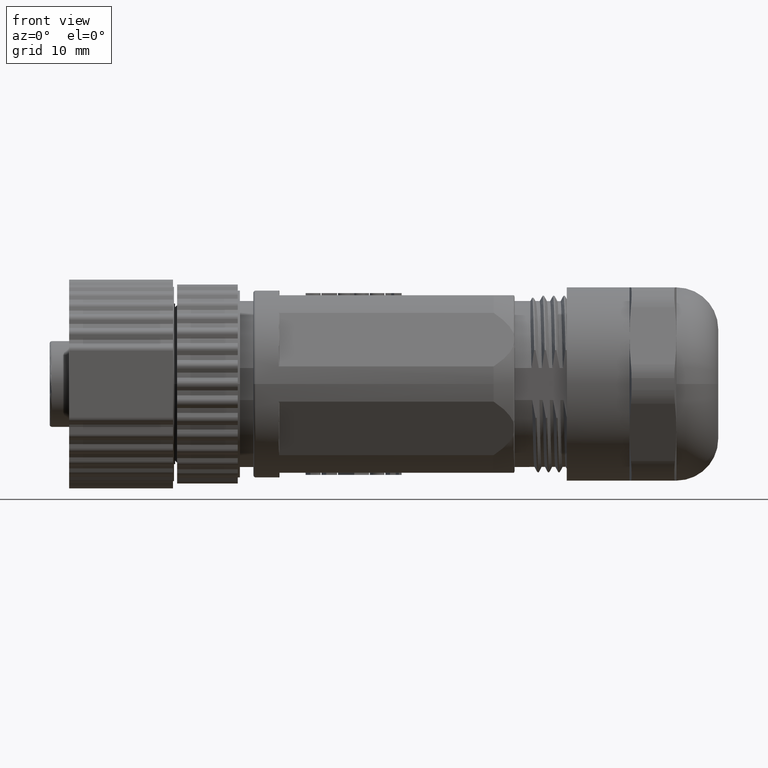
[diagram: clean part render]
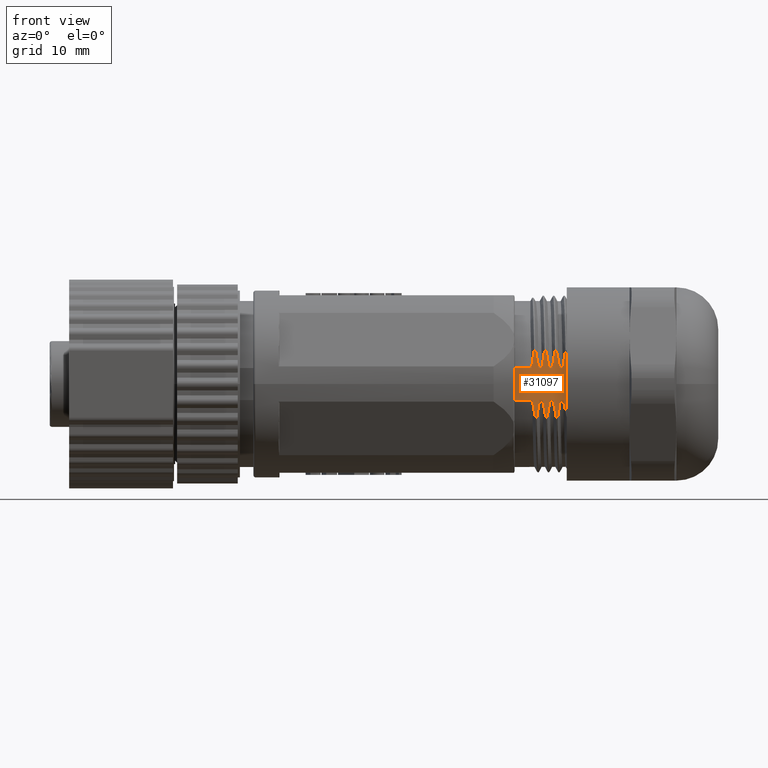
[diagram: same view with one face highlighted and labeled with its STEP entity id]
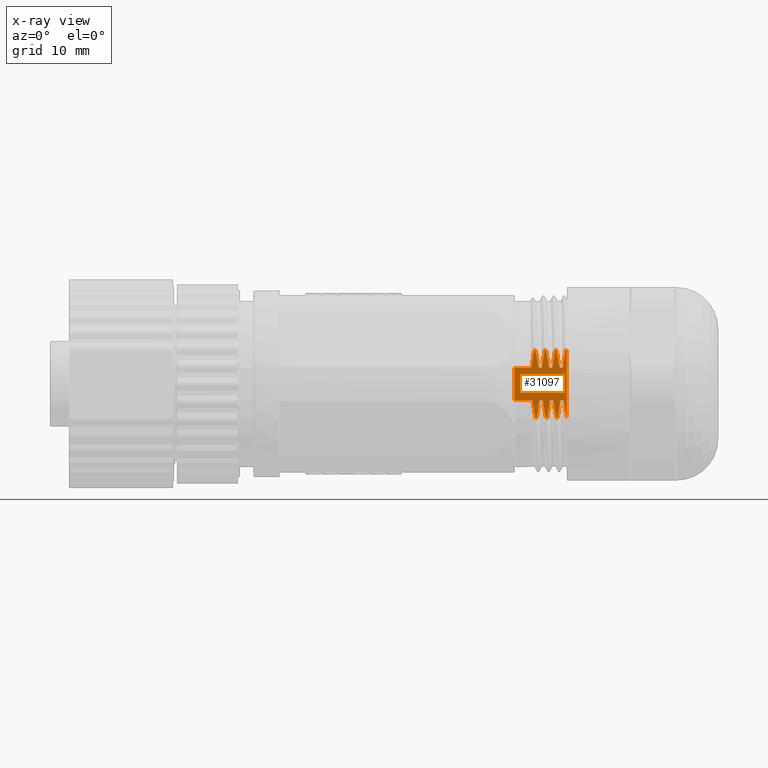
[diagram: x-ray of the same camera — body ghosted, the highlighted face saturated]
A machine part, front view. The second image highlights one B-rep face of the part: STEP entity #31097.
The next image is the same camera in x-ray: the body ghosted, the highlighted face saturated — about 0% of this face is hidden behind the body in this view.
In plain terms, the highlighted planar face has unit normal (0, 1, 0).
Its self-contained STEP definition (entity closure, byte-faithful):
#8309=DIRECTION('',(0.E0,0.E0,1.E0));
#8310=VECTOR('',#8309,3.074085229788E0);
#8311=CARTESIAN_POINT('',(3.82E1,-7.8E0,-1.537042614894E0));
#8312=LINE('',#8311,#8310);
#8322=DIRECTION('',(1.E0,0.E0,0.E0));
#8323=VECTOR('',#8322,1.620241579782E0);
#8324=CARTESIAN_POINT('',(3.82E1,-7.8E0,1.537042614894E0));
#8325=LINE('',#8324,#8323);
#8370=DIRECTION('',(1.E0,0.E0,0.E0));
#8371=VECTOR('',#8370,3.024147763332E-1);
#8372=CARTESIAN_POINT('',(4.051782680345E1,-7.8E0,1.537042614894E0));
#8373=LINE('',#8372,#8371);
#8436=DIRECTION('',(-6.296052860604E-6,-8.798093295683E-5,9.999999961099E-1));
#8437=VECTOR('',#8436,6.476355503111E0);
#8438=CARTESIAN_POINT('',(4.32E1,-7.8E0,-3.238643957013E0));
#8439=LINE('',#8438,#8437);
#9227=CARTESIAN_POINT('',(4.319995922452E1,-7.800569795799E0,3.237711520904E0));
#9271=DIRECTION('',(9.999134640712E-1,-4.554136942613E-3,-1.234196928500E-2));
#9272=VECTOR('',#9271,1.251160881867E-1);
#9273=CARTESIAN_POINT('',(4.307485396337E1,-7.8E0,3.239255699822E0));
#9274=LINE('',#9273,#9272);
#9314=CARTESIAN_POINT('',(4.282024157978E1,-7.8E0,1.537042614894E0));
#9315=CARTESIAN_POINT('',(4.283754805226E1,-7.8E0,1.725192474037E0));
#9316=CARTESIAN_POINT('',(4.287976619046E1,-7.8E0,2.102101291705E0));
#9317=CARTESIAN_POINT('',(4.296482364788E1,-7.8E0,2.667783181130E0));
#9318=CARTESIAN_POINT('',(4.303590264312E1,-7.8E0,3.048344774332E0));
#9319=CARTESIAN_POINT('',(4.307485396337E1,-7.8E0,3.239255699822E0));
#9329=DIRECTION('',(1.E0,0.E0,-2.276139690044E-14));
#9330=VECTOR('',#9329,3.024147763332E-1);
#9331=CARTESIAN_POINT('',(4.251782680345E1,-7.8E0,1.537042614894E0));
#9332=LINE('',#9331,#9330);
#9417=CARTESIAN_POINT('',(4.219985390509E1,-7.8E0,3.239255699822E0));
#9418=CARTESIAN_POINT('',(4.223414459759E1,-7.8E0,3.095680808021E0));
#9419=CARTESIAN_POINT('',(4.229896671291E1,-7.8E0,2.809567608672E0));
#9420=CARTESIAN_POINT('',(4.238445750902E1,-7.8E0,2.383919060364E0));
#9421=CARTESIAN_POINT('',(4.245816315035E1,-7.8E0,1.960213975953E0));
#9422=CARTESIAN_POINT('',(4.249932303508E1,-7.8E0,1.678006619357E0));
#9423=CARTESIAN_POINT('',(4.251782680345E1,-7.8E0,1.537042614894E0));
#9468=DIRECTION('',(1.E0,-2.842172268203E-14,-3.907986868780E-14));
#9469=VECTOR('',#9468,1.249999417187E-1);
#9470=CARTESIAN_POINT('',(4.207485396337E1,-7.8E0,3.239255699822E0));
#9471=LINE('',#9470,#9469);
#9511=CARTESIAN_POINT('',(4.182024157978E1,-7.8E0,1.537042614894E0));
#9512=CARTESIAN_POINT('',(4.183754811108E1,-7.8E0,1.725193113542E0));
#9513=CARTESIAN_POINT('',(4.187976637894E1,-7.8E0,2.102102777763E0));
#9514=CARTESIAN_POINT('',(4.196482388939E1,-7.8E0,2.667784560969E0));
#9515=CARTESIAN_POINT('',(4.203590276302E1,-7.8E0,3.048345361979E0));
#9516=CARTESIAN_POINT('',(4.207485396337E1,-7.8E0,3.239255699822E0));
#9526=DIRECTION('',(1.E0,0.E0,-3.597769187479E-14));
#9527=VECTOR('',#9526,3.024147763340E-1);
#9528=CARTESIAN_POINT('',(4.151782680345E1,-7.8E0,1.537042614894E0));
#9529=LINE('',#9528,#9527);
#9614=CARTESIAN_POINT('',(4.119985390509E1,-7.8E0,3.239255699822E0));
#9615=CARTESIAN_POINT('',(4.123414459759E1,-7.8E0,3.095680808011E0));
#9616=CARTESIAN_POINT('',(4.129896671292E1,-7.8E0,2.809567608647E0));
#9617=CARTESIAN_POINT('',(4.138445750902E1,-7.8E0,2.383919060342E0));
#9618=CARTESIAN_POINT('',(4.145816315035E1,-7.8E0,1.960213975945E0));
#9619=CARTESIAN_POINT('',(4.149932303508E1,-7.8E0,1.678006619354E0));
#9620=CARTESIAN_POINT('',(4.151782680345E1,-7.8E0,1.537042614894E0));
#9664=DIRECTION('',(1.E0,1.421086134102E-14,7.105430670509E-14));
#9665=VECTOR('',#9664,1.249999417187E-1);
#9666=CARTESIAN_POINT('',(4.107485396337E1,-7.8E0,3.239255699822E0));
#9667=LINE('',#9666,#9665);
#9707=CARTESIAN_POINT('',(4.082024157978E1,-7.8E0,1.537042614894E0));
#9708=CARTESIAN_POINT('',(4.083754811108E1,-7.8E0,1.725193113537E0));
#9709=CARTESIAN_POINT('',(4.087976637893E1,-7.8E0,2.102102777751E0));
#9710=CARTESIAN_POINT('',(4.096482388938E1,-7.8E0,2.667784560939E0));
#9711=CARTESIAN_POINT('',(4.103590276301E1,-7.8E0,3.048345361966E0));
#9712=CARTESIAN_POINT('',(4.107485396337E1,-7.8E0,3.239255699822E0));
#9726=DIRECTION('',(1.E0,0.E0,0.E0));
#9727=VECTOR('',#9726,1.682173196551E0);
#9728=CARTESIAN_POINT('',(3.82E1,-7.8E0,-1.537042614894E0));
#9729=LINE('',#9728,#9727);
#9774=CARTESIAN_POINT('',(4.020014609491E1,-7.8E0,-3.239255699822E0));
#9775=CARTESIAN_POINT('',(4.016585541675E1,-7.8E0,-3.095680868034E0));
#9776=CARTESIAN_POINT('',(4.010103332037E1,-7.8E0,-2.809567760520E0));
#9777=CARTESIAN_POINT('',(4.001554252890E1,-7.8E0,-2.383919261880E0));
#9778=CARTESIAN_POINT('',(3.994183687573E1,-7.8E0,-1.960214144009E0));
#9779=CARTESIAN_POINT('',(3.990067697384E1,-7.8E0,-1.678006687287E0));
#9780=CARTESIAN_POINT('',(3.988217319655E1,-7.8E0,-1.537042614894E0));
#9789=DIRECTION('',(-1.E0,-3.552715335254E-14,7.105430670509E-14));
#9790=VECTOR('',#9789,1.249999417187E-1);
#9791=CARTESIAN_POINT('',(4.032514603663E1,-7.8E0,-3.239255699822E0));
#9792=LINE('',#9791,#9790);
#9832=CARTESIAN_POINT('',(4.057975842022E1,-7.8E0,-1.537042614894E0));
#9833=CARTESIAN_POINT('',(4.056245189834E1,-7.8E0,-1.725193011092E0));
#9834=CARTESIAN_POINT('',(4.052023365130E1,-7.8E0,-2.102102539755E0));
#9835=CARTESIAN_POINT('',(4.043517614846E1,-7.8E0,-2.667784344982E0));
#9836=CARTESIAN_POINT('',(4.036409725574E1,-7.8E0,-3.048345270016E0));
#9837=CARTESIAN_POINT('',(4.032514603663E1,-7.8E0,-3.239255699822E0));
#9882=DIRECTION('',(1.E0,0.E0,1.762172663259E-14));
#9883=VECTOR('',#9882,3.024147763333E-1);
#9884=CARTESIAN_POINT('',(4.057975842022E1,-7.8E0,-1.537042614894E0));
#9885=LINE('',#9884,#9883);
#9970=CARTESIAN_POINT('',(4.120014609491E1,-7.8E0,-3.239255699822E0));
#9971=CARTESIAN_POINT('',(4.116585553454E1,-7.8E0,-3.095681361233E0));
#9972=CARTESIAN_POINT('',(4.110103358719E1,-7.8E0,-2.809568982787E0));
#9973=CARTESIAN_POINT('',(4.101554279271E1,-7.8E0,-2.383920673757E0));
#9974=CARTESIAN_POINT('',(4.094183703615E1,-7.8E0,-1.960215183572E0));
#9975=CARTESIAN_POINT('',(4.090067702774E1,-7.8E0,-1.678007097907E0));
#9976=CARTESIAN_POINT('',(4.088217319655E1,-7.8E0,-1.537042614894E0));
#9985=DIRECTION('',(-1.E0,0.E0,0.E0));
#9986=VECTOR('',#9985,1.249999417187E-1);
#9987=CARTESIAN_POINT('',(4.132514603663E1,-7.8E0,-3.239255699822E0));
#9988=LINE('',#9987,#9986);
#10028=CARTESIAN_POINT('',(4.157975842022E1,-7.8E0,-1.537042614894E0));
#10029=CARTESIAN_POINT('',(4.156245183318E1,-7.8E0,-1.725193719517E0));
#10030=CARTESIAN_POINT('',(4.152023344549E1,-7.8E0,-2.102104190520E0));
#10031=CARTESIAN_POINT('',(4.143517581972E1,-7.8E0,-2.667786244488E0));
#10032=CARTESIAN_POINT('',(4.136409709037E1,-7.8E0,-3.048346080573E0));
#10033=CARTESIAN_POINT('',(4.132514603663E1,-7.8E0,-3.239255699822E0));
#10078=DIRECTION('',(1.E0,0.E0,-3.744616909417E-14));
#10079=VECTOR('',#10078,3.024147763340E-1);
#10080=CARTESIAN_POINT('',(4.157975842022E1,-7.8E0,-1.537042614894E0));
#10081=LINE('',#10080,#10079);
#10166=CARTESIAN_POINT('',(4.220014609491E1,-7.8E0,-3.239255699822E0));
#10167=CARTESIAN_POINT('',(4.216585541675E1,-7.8E0,-3.095680868038E0));
#10168=CARTESIAN_POINT('',(4.210103332037E1,-7.8E0,-2.809567760530E0));
#10169=CARTESIAN_POINT('',(4.201554252890E1,-7.8E0,-2.383919261889E0));
#10170=CARTESIAN_POINT('',(4.194183687574E1,-7.8E0,-1.960214144013E0));
#10171=CARTESIAN_POINT('',(4.190067697384E1,-7.8E0,-1.678006687289E0));
#10172=CARTESIAN_POINT('',(4.188217319655E1,-7.8E0,-1.537042614894E0));
#10181=DIRECTION('',(-1.E0,-2.131629201153E-14,5.329073002882E-14));
#10182=VECTOR('',#10181,1.249999417187E-1);
#10183=CARTESIAN_POINT('',(4.232514603663E1,-7.8E0,-3.239255699822E0));
#10184=LINE('',#10183,#10182);
#10224=CARTESIAN_POINT('',(4.257975842022E1,-7.8E0,-1.537042614894E0));
#10225=CARTESIAN_POINT('',(4.256245189834E1,-7.8E0,-1.725193011094E0));
#10226=CARTESIAN_POINT('',(4.252023365130E1,-7.8E0,-2.102102539761E0));
#10227=CARTESIAN_POINT('',(4.243517614846E1,-7.8E0,-2.667784344994E0));
#10228=CARTESIAN_POINT('',(4.236409725574E1,-7.8E0,-3.048345270021E0));
#10229=CARTESIAN_POINT('',(4.232514603663E1,-7.8E0,-3.239255699822E0));
#10323=DIRECTION('',(1.E0,0.E0,-1.762172663260E-14));
#10324=VECTOR('',#10323,3.024147763331E-1);
#10325=CARTESIAN_POINT('',(4.257975842022E1,-7.8E0,-1.537042614894E0));
#10326=LINE('',#10325,#10324);
#10362=CARTESIAN_POINT('',(4.32E1,-7.8E0,-3.238643957013E0));
#10379=CARTESIAN_POINT('',(4.32E1,-7.8E0,-3.238643957013E0));
#10380=CARTESIAN_POINT('',(4.316572686462E1,-7.8E0,-3.095121723745E0));
#10381=CARTESIAN_POINT('',(4.310093732674E1,-7.8E0,-2.809112859897E0));
#10382=CARTESIAN_POINT('',(4.301548735775E1,-7.8E0,-2.383617935845E0));
#10383=CARTESIAN_POINT('',(4.294181422069E1,-7.8E0,-1.960063824739E0));
#10384=CARTESIAN_POINT('',(4.290067041285E1,-7.8E0,-1.677956704871E0));
#10385=CARTESIAN_POINT('',(4.288217319655E1,-7.8E0,-1.537042614894E0));
#10400=CARTESIAN_POINT('',(3.982024157978E1,-7.8E0,1.537042614894E0));
#10401=CARTESIAN_POINT('',(3.983754811108E1,-7.8E0,1.725193113546E0));
#10402=CARTESIAN_POINT('',(3.987976637894E1,-7.8E0,2.102102777774E0));
#10403=CARTESIAN_POINT('',(3.996482388940E1,-7.8E0,2.667784561002E0));
#10404=CARTESIAN_POINT('',(4.003590276302E1,-7.8E0,3.048345361993E0));
#10405=CARTESIAN_POINT('',(4.007485396337E1,-7.8E0,3.239255699822E0));
#10475=CARTESIAN_POINT('',(4.019985390509E1,-7.8E0,3.239255699822E0));
#10476=CARTESIAN_POINT('',(4.023414459758E1,-7.8E0,3.095680808033E0));
#10477=CARTESIAN_POINT('',(4.029896671291E1,-7.8E0,2.809567608700E0));
#10478=CARTESIAN_POINT('',(4.038445750901E1,-7.8E0,2.383919060387E0));
#10479=CARTESIAN_POINT('',(4.045816315034E1,-7.8E0,1.960213975960E0));
#10480=CARTESIAN_POINT('',(4.049932303508E1,-7.8E0,1.678006619359E0));
#10481=CARTESIAN_POINT('',(4.051782680345E1,-7.8E0,1.537042614894E0));
#10494=DIRECTION('',(1.E0,0.E0,0.E0));
#10495=VECTOR('',#10494,1.249999417187E-1);
#10496=CARTESIAN_POINT('',(4.007485396337E1,-7.8E0,3.239255699822E0));
#10497=LINE('',#10496,#10495);
#22954=CARTESIAN_POINT('',(3.82E1,-7.8E0,1.537042614894E0));
#22955=CARTESIAN_POINT('',(3.982024157978E1,-7.8E0,1.537042614894E0));
#22956=VERTEX_POINT('',#22954);
#22957=VERTEX_POINT('',#22955);
#22958=CARTESIAN_POINT('',(4.051782680345E1,-7.8E0,1.537042614894E0));
#22959=CARTESIAN_POINT('',(4.082024157978E1,-7.8E0,1.537042614894E0));
#22960=VERTEX_POINT('',#22958);
#22961=VERTEX_POINT('',#22959);
#22962=CARTESIAN_POINT('',(4.151782680345E1,-7.8E0,1.537042614894E0));
#22963=CARTESIAN_POINT('',(4.182024157978E1,-7.8E0,1.537042614894E0));
#22964=VERTEX_POINT('',#22962);
#22965=VERTEX_POINT('',#22963);
#22966=CARTESIAN_POINT('',(4.251782680345E1,-7.8E0,1.537042614894E0));
#22967=CARTESIAN_POINT('',(4.282024157978E1,-7.8E0,1.537042614894E0));
#22968=VERTEX_POINT('',#22966);
#22969=VERTEX_POINT('',#22967);
#22982=CARTESIAN_POINT('',(3.82E1,-7.8E0,-1.537042614894E0));
#22983=CARTESIAN_POINT('',(3.988217319655E1,-7.8E0,-1.537042614894E0));
#22984=VERTEX_POINT('',#22982);
#22985=VERTEX_POINT('',#22983);
#22986=CARTESIAN_POINT('',(4.057975842022E1,-7.8E0,-1.537042614894E0));
#22987=CARTESIAN_POINT('',(4.088217319655E1,-7.8E0,-1.537042614894E0));
#22988=VERTEX_POINT('',#22986);
#22989=VERTEX_POINT('',#22987);
#22990=CARTESIAN_POINT('',(4.157975842022E1,-7.8E0,-1.537042614894E0));
#22991=CARTESIAN_POINT('',(4.188217319655E1,-7.8E0,-1.537042614894E0));
#22992=VERTEX_POINT('',#22990);
#22993=VERTEX_POINT('',#22991);
#22994=CARTESIAN_POINT('',(4.257975842022E1,-7.8E0,-1.537042614894E0));
#22995=CARTESIAN_POINT('',(4.288217319655E1,-7.8E0,-1.537042614894E0));
#22996=VERTEX_POINT('',#22994);
#22997=VERTEX_POINT('',#22995);
#23010=VERTEX_POINT('',#9319);
#23011=VERTEX_POINT('',#10166);
#23012=VERTEX_POINT('',#9516);
#23013=VERTEX_POINT('',#9970);
#23014=VERTEX_POINT('',#9712);
#23015=VERTEX_POINT('',#9774);
#23016=VERTEX_POINT('',#10405);
#23023=CARTESIAN_POINT('',(4.232514603663E1,-7.8E0,-3.239255699822E0));
#23024=VERTEX_POINT('',#23023);
#23025=CARTESIAN_POINT('',(4.219985390509E1,-7.8E0,3.239255699822E0));
#23026=VERTEX_POINT('',#23025);
#23027=CARTESIAN_POINT('',(4.132514603663E1,-7.8E0,-3.239255699822E0));
#23028=VERTEX_POINT('',#23027);
#23029=CARTESIAN_POINT('',(4.119985390509E1,-7.8E0,3.239255699822E0));
#23030=VERTEX_POINT('',#23029);
#23031=CARTESIAN_POINT('',(4.032514603663E1,-7.8E0,-3.239255699822E0));
#23032=VERTEX_POINT('',#23031);
#23033=CARTESIAN_POINT('',(4.019985390509E1,-7.8E0,3.239255699822E0));
#23034=VERTEX_POINT('',#23033);
#23275=VERTEX_POINT('',#10362);
#23276=VERTEX_POINT('',#9227);
#31031=CARTESIAN_POINT('',(3.82E1,-7.8E0,-3.501785258979E0));
#31032=DIRECTION('',(0.E0,1.E0,0.E0));
#31033=DIRECTION('',(0.E0,0.E0,1.E0));
#31034=AXIS2_PLACEMENT_3D('',#31031,#31032,#31033);
#31035=PLANE('',#31034);
#31037=ORIENTED_EDGE('',*,*,#31036,.F.);
#31039=ORIENTED_EDGE('',*,*,#31038,.T.);
#31041=ORIENTED_EDGE('',*,*,#31040,.F.);
#31043=ORIENTED_EDGE('',*,*,#31042,.T.);
#31045=ORIENTED_EDGE('',*,*,#31044,.T.);
#31047=ORIENTED_EDGE('',*,*,#31046,.T.);
#31049=ORIENTED_EDGE('',*,*,#31048,.F.);
#31051=ORIENTED_EDGE('',*,*,#31050,.T.);
#31053=ORIENTED_EDGE('',*,*,#31052,.T.);
#31055=ORIENTED_EDGE('',*,*,#31054,.T.);
#31057=ORIENTED_EDGE('',*,*,#31056,.F.);
#31059=ORIENTED_EDGE('',*,*,#31058,.T.);
#31061=ORIENTED_EDGE('',*,*,#31060,.T.);
#31063=ORIENTED_EDGE('',*,*,#31062,.T.);
#31065=ORIENTED_EDGE('',*,*,#31064,.F.);
#31066=ORIENTED_EDGE('',*,*,#30995,.T.);
#31067=ORIENTED_EDGE('',*,*,#31009,.T.);
#31069=ORIENTED_EDGE('',*,*,#31068,.T.);
#31071=ORIENTED_EDGE('',*,*,#31070,.T.);
#31073=ORIENTED_EDGE('',*,*,#31072,.T.);
#31074=ORIENTED_EDGE('',*,*,#31016,.T.);
#31076=ORIENTED_EDGE('',*,*,#31075,.T.);
#31078=ORIENTED_EDGE('',*,*,#31077,.T.);
#31080=ORIENTED_EDGE('',*,*,#31079,.T.);
#31082=ORIENTED_EDGE('',*,*,#31081,.T.);
#31084=ORIENTED_EDGE('',*,*,#31083,.T.);
#31086=ORIENTED_EDGE('',*,*,#31085,.T.);
#31088=ORIENTED_EDGE('',*,*,#31087,.T.);
#31090=ORIENTED_EDGE('',*,*,#31089,.T.);
#31092=ORIENTED_EDGE('',*,*,#31091,.T.);
#31094=ORIENTED_EDGE('',*,*,#31093,.T.);
#31095=EDGE_LOOP('',(#31037,#31039,#31041,#31043,#31045,#31047,#31049,#31051,
#31053,#31055,#31057,#31059,#31061,#31063,#31065,#31066,#31067,#31069,#31071,
#31073,#31074,#31076,#31078,#31080,#31082,#31084,#31086,#31088,#31090,#31092,
#31094));
#31096=FACE_OUTER_BOUND('',#31095,.F.);
#31097=ADVANCED_FACE('',(#31096),#31035,.F.);
#9320=B_SPLINE_CURVE_WITH_KNOTS('',3,(#9314,#9315,#9316,#9317,#9318,#9319),
.UNSPECIFIED.,.F.,.F.,(4,1,1,4),(0.E0,3.333333333333E-1,6.666666666667E-1,1.E0),
.UNSPECIFIED.);
#9424=B_SPLINE_CURVE_WITH_KNOTS('',3,(#9417,#9418,#9419,#9420,#9421,#9422,
#9423),.UNSPECIFIED.,.F.,.F.,(4,1,1,1,4),(0.E0,2.5E-1,5.E-1,7.5E-1,1.E0),
.UNSPECIFIED.);
#9517=B_SPLINE_CURVE_WITH_KNOTS('',3,(#9511,#9512,#9513,#9514,#9515,#9516),
.UNSPECIFIED.,.F.,.F.,(4,1,1,4),(0.E0,3.333333333333E-1,6.666666666667E-1,1.E0),
.UNSPECIFIED.);
#9621=B_SPLINE_CURVE_WITH_KNOTS('',3,(#9614,#9615,#9616,#9617,#9618,#9619,
#9620),.UNSPECIFIED.,.F.,.F.,(4,1,1,1,4),(0.E0,2.5E-1,5.E-1,7.5E-1,1.E0),
.UNSPECIFIED.);
#9713=B_SPLINE_CURVE_WITH_KNOTS('',3,(#9707,#9708,#9709,#9710,#9711,#9712),
.UNSPECIFIED.,.F.,.F.,(4,1,1,4),(0.E0,3.333333333333E-1,6.666666666667E-1,1.E0),
.UNSPECIFIED.);
#9781=B_SPLINE_CURVE_WITH_KNOTS('',3,(#9774,#9775,#9776,#9777,#9778,#9779,
#9780),.UNSPECIFIED.,.F.,.F.,(4,1,1,1,4),(0.E0,2.5E-1,5.E-1,7.5E-1,1.E0),
.UNSPECIFIED.);
#9838=B_SPLINE_CURVE_WITH_KNOTS('',3,(#9832,#9833,#9834,#9835,#9836,#9837),
.UNSPECIFIED.,.F.,.F.,(4,1,1,4),(0.E0,3.333333333333E-1,6.666666666667E-1,1.E0),
.UNSPECIFIED.);
#9977=B_SPLINE_CURVE_WITH_KNOTS('',3,(#9970,#9971,#9972,#9973,#9974,#9975,
#9976),.UNSPECIFIED.,.F.,.F.,(4,1,1,1,4),(0.E0,2.5E-1,5.E-1,7.5E-1,1.E0),
.UNSPECIFIED.);
#10034=B_SPLINE_CURVE_WITH_KNOTS('',3,(#10028,#10029,#10030,#10031,#10032,
#10033),.UNSPECIFIED.,.F.,.F.,(4,1,1,4),(0.E0,3.333333333333E-1,
6.666666666667E-1,1.E0),.UNSPECIFIED.);
#10173=B_SPLINE_CURVE_WITH_KNOTS('',3,(#10166,#10167,#10168,#10169,#10170,
#10171,#10172),.UNSPECIFIED.,.F.,.F.,(4,1,1,1,4),(0.E0,2.5E-1,5.E-1,7.5E-1,
1.E0),.UNSPECIFIED.);
#10230=B_SPLINE_CURVE_WITH_KNOTS('',3,(#10224,#10225,#10226,#10227,#10228,
#10229),.UNSPECIFIED.,.F.,.F.,(4,1,1,4),(0.E0,3.333333333333E-1,
6.666666666667E-1,1.E0),.UNSPECIFIED.);
#10386=B_SPLINE_CURVE_WITH_KNOTS('',3,(#10379,#10380,#10381,#10382,#10383,
#10384,#10385),.UNSPECIFIED.,.F.,.F.,(4,1,1,1,4),(0.E0,2.5E-1,5.E-1,7.5E-1,
1.E0),.UNSPECIFIED.);
#10406=B_SPLINE_CURVE_WITH_KNOTS('',3,(#10400,#10401,#10402,#10403,#10404,
#10405),.UNSPECIFIED.,.F.,.F.,(4,1,1,4),(0.E0,3.333333333333E-1,
6.666666666667E-1,1.E0),.UNSPECIFIED.);
#10482=B_SPLINE_CURVE_WITH_KNOTS('',3,(#10475,#10476,#10477,#10478,#10479,
#10480,#10481),.UNSPECIFIED.,.F.,.F.,(4,1,1,1,4),(0.E0,2.5E-1,5.E-1,7.5E-1,
1.E0),.UNSPECIFIED.);
#30995=EDGE_CURVE('',#22984,#22956,#8312,.T.);
#31009=EDGE_CURVE('',#22956,#22957,#8325,.T.);
#31016=EDGE_CURVE('',#22960,#22961,#8373,.T.);
#31036=EDGE_CURVE('',#23275,#23276,#8439,.T.);
#31038=EDGE_CURVE('',#23275,#22997,#10386,.T.);
#31040=EDGE_CURVE('',#22996,#22997,#10326,.T.);
#31042=EDGE_CURVE('',#22996,#23024,#10230,.T.);
#31044=EDGE_CURVE('',#23024,#23011,#10184,.T.);
#31046=EDGE_CURVE('',#23011,#22993,#10173,.T.);
#31048=EDGE_CURVE('',#22992,#22993,#10081,.T.);
#31050=EDGE_CURVE('',#22992,#23028,#10034,.T.);
#31052=EDGE_CURVE('',#23028,#23013,#9988,.T.);
#31054=EDGE_CURVE('',#23013,#22989,#9977,.T.);
#31056=EDGE_CURVE('',#22988,#22989,#9885,.T.);
#31058=EDGE_CURVE('',#22988,#23032,#9838,.T.);
#31060=EDGE_CURVE('',#23032,#23015,#9792,.T.);
#31062=EDGE_CURVE('',#23015,#22985,#9781,.T.);
#31064=EDGE_CURVE('',#22984,#22985,#9729,.T.);
#31068=EDGE_CURVE('',#22957,#23016,#10406,.T.);
#31070=EDGE_CURVE('',#23016,#23034,#10497,.T.);
#31072=EDGE_CURVE('',#23034,#22960,#10482,.T.);
#31075=EDGE_CURVE('',#22961,#23014,#9713,.T.);
#31077=EDGE_CURVE('',#23014,#23030,#9667,.T.);
#31079=EDGE_CURVE('',#23030,#22964,#9621,.T.);
#31081=EDGE_CURVE('',#22964,#22965,#9529,.T.);
#31083=EDGE_CURVE('',#22965,#23012,#9517,.T.);
#31085=EDGE_CURVE('',#23012,#23026,#9471,.T.);
#31087=EDGE_CURVE('',#23026,#22968,#9424,.T.);
#31089=EDGE_CURVE('',#22968,#22969,#9332,.T.);
#31091=EDGE_CURVE('',#22969,#23010,#9320,.T.);
#31093=EDGE_CURVE('',#23010,#23276,#9274,.T.);